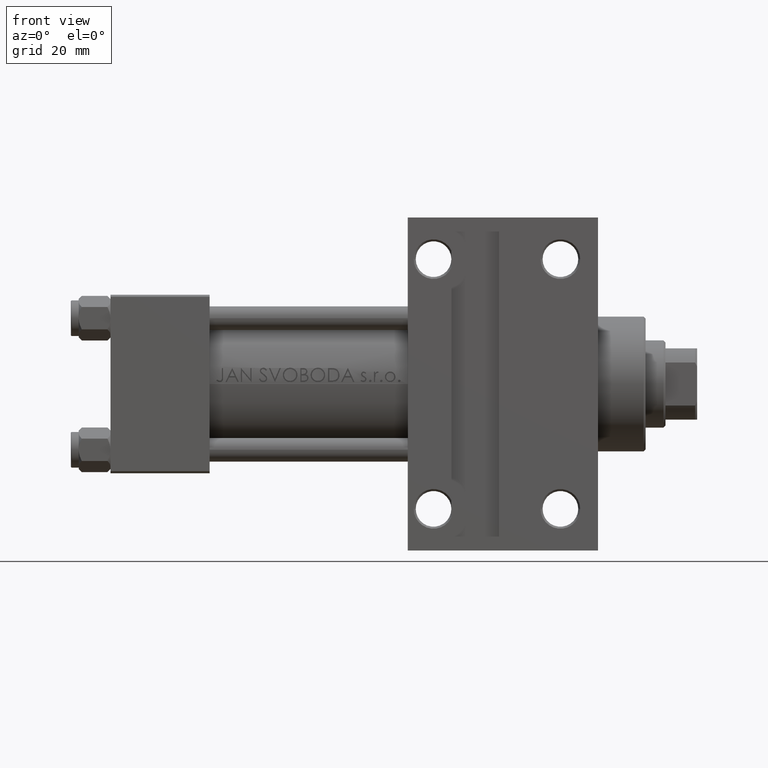
[diagram: clean part render]
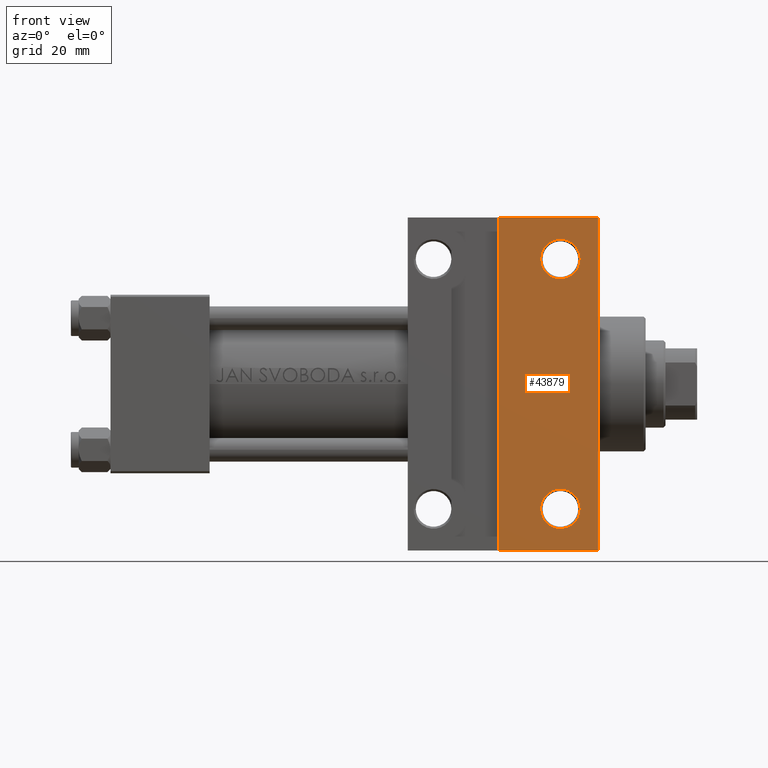
[diagram: same view with one face highlighted and labeled with its STEP entity id]
A machine part, front view. The second image highlights one B-rep face of the part: STEP entity #43879.
In plain terms, the highlighted planar face has unit normal (0, -1, -0).
Its self-contained STEP definition (entity closure, byte-faithful):
#207 = ORIENTED_EDGE ( 'NONE', *, *, #29342, .T. ) ;
#428 = ORIENTED_EDGE ( 'NONE', *, *, #23253, .F. ) ;
#873 = VECTOR ( 'NONE', #32777, 1000.000000000000000 ) ;
#1114 = CARTESIAN_POINT ( 'NONE',  ( 113.5000000000000142, 31.50000000000000000, -22.49999999999999645 ) ) ;
#1358 = DIRECTION ( 'NONE',  ( 0.000000000000000000, 1.000000000000000000, 0.000000000000000000 ) ) ;
#1909 = ORIENTED_EDGE ( 'NONE', *, *, #3621, .T. ) ;
#2161 = CARTESIAN_POINT ( 'NONE',  ( 118.4994999999999692, -31.50000000000000000, -22.50000000000000000 ) ) ;
#3485 = ORIENTED_EDGE ( 'NONE', *, *, #4098, .T. ) ;
#3621 = EDGE_CURVE ( 'NONE', #43614, #8466, #43162, .T. ) ;
#4098 = EDGE_CURVE ( 'NONE', #34430, #25370, #47517, .T. ) ;
#4523 = AXIS2_PLACEMENT_3D ( 'NONE', #37100, #10803, #40468 ) ;
#4905 = CIRCLE ( 'NONE', #27222, 4.999499999999948763 ) ;
#5588 = DIRECTION ( 'NONE',  ( -1.000000000000000000, -0.000000000000000000, -0.000000000000000000 ) ) ;
#7475 = CARTESIAN_POINT ( 'NONE',  ( 123.0000000000000142, 22.50000000000000355, -22.49999999999999645 ) ) ;
#8198 = CARTESIAN_POINT ( 'NONE',  ( 118.4994999999999834, 31.50000000000000000, -22.49999999999999645 ) ) ;
#8466 = VERTEX_POINT ( 'NONE', #40314 ) ;
#8575 = EDGE_LOOP ( 'NONE', ( #27289, #3485 ) ) ;
#9009 = VECTOR ( 'NONE', #16391, 1000.000000000000000 ) ;
#9430 = CARTESIAN_POINT ( 'NONE',  ( 108.5005000000000734, -31.50000000000000000, -22.50000000000000000 ) ) ;
#10046 = ORIENTED_EDGE ( 'NONE', *, *, #32508, .T. ) ;
#10803 = DIRECTION ( 'NONE',  ( -0.000000000000000000, -7.709882115452476934E-17, 1.000000000000000000 ) ) ;
#11814 = CARTESIAN_POINT ( 'NONE',  ( 98.00000000000000000, -42.00000000000001421, -22.50000000000000000 ) ) ;
#11929 = VERTEX_POINT ( 'NONE', #37681 ) ;
#14032 = EDGE_CURVE ( 'NONE', #8466, #47546, #25778, .T. ) ;
#14538 = CARTESIAN_POINT ( 'NONE',  ( 98.00000000000000000, 42.00000000000000711, -22.50000000000000000 ) ) ;
#14584 = VECTOR ( 'NONE', #5588, 1000.000000000000000 ) ;
#14964 = PLANE ( 'NONE',  #20988 ) ;
#15419 = EDGE_CURVE ( 'NONE', #15840, #25777, #4905, .T. ) ;
#15840 = VERTEX_POINT ( 'NONE', #2161 ) ;
#16391 = DIRECTION ( 'NONE',  ( 1.000000000000000000, -2.891205793294679312E-16, 0.000000000000000000 ) ) ;
#16422 = CARTESIAN_POINT ( 'NONE',  ( 75.00000000000000000, -42.00000000000000711, -22.50000000000000000 ) ) ;
#18103 = FACE_BOUND ( 'NONE', #31396, .T. ) ;
#19334 = LINE ( 'NONE', #16422, #14584 ) ;
#20988 = AXIS2_PLACEMENT_3D ( 'NONE', #7475, #33536, #32806 ) ;
#21091 = CIRCLE ( 'NONE', #38058, 4.999499999999962085 ) ;
#22205 = ORIENTED_EDGE ( 'NONE', *, *, #15419, .T. ) ;
#23144 = LINE ( 'NONE', #11814, #39843 ) ;
#23253 = EDGE_CURVE ( 'NONE', #43614, #11929, #23144, .T. ) ;
#24802 = CARTESIAN_POINT ( 'NONE',  ( 75.00000000000001421, 42.00000000000000711, -22.50000000000000000 ) ) ;
#25370 = VERTEX_POINT ( 'NONE', #32131 ) ;
#25543 = CARTESIAN_POINT ( 'NONE',  ( 123.0000000000000142, 22.50000000000000355, -22.49999999999999645 ) ) ;
#25777 = VERTEX_POINT ( 'NONE', #9430 ) ;
#25778 = LINE ( 'NONE', #25543, #873 ) ;
#26694 = AXIS2_PLACEMENT_3D ( 'NONE', #1114, #34379, #1358 ) ;
#26854 = ORIENTED_EDGE ( 'NONE', *, *, #14032, .T. ) ;
#27222 = AXIS2_PLACEMENT_3D ( 'NONE', #39819, #28468, #43208 ) ;
#27289 = ORIENTED_EDGE ( 'NONE', *, *, #46579, .T. ) ;
#28468 = DIRECTION ( 'NONE',  ( -0.000000000000000000, -7.709882115452476934E-17, 1.000000000000000000 ) ) ;
#28711 = FACE_OUTER_BOUND ( 'NONE', #39432, .T. ) ;
#29342 = EDGE_CURVE ( 'NONE', #25777, #15840, #43810, .T. ) ;
#31396 = EDGE_LOOP ( 'NONE', ( #207, #22205 ) ) ;
#32131 = CARTESIAN_POINT ( 'NONE',  ( 108.5005000000000592, 31.50000000000000000, -22.49999999999999645 ) ) ;
#32499 = CARTESIAN_POINT ( 'NONE',  ( 113.5000000000000142, 31.50000000000000000, -22.49999999999999645 ) ) ;
#32508 = EDGE_CURVE ( 'NONE', #47546, #11929, #19334, .T. ) ;
#32777 = DIRECTION ( 'NONE',  ( 0.000000000000000000, -1.000000000000000000, -7.709882115452476934E-17 ) ) ;
#32806 = DIRECTION ( 'NONE',  ( 0.000000000000000000, 1.000000000000000000, 7.709882115452476934E-17 ) ) ;
#33536 = DIRECTION ( 'NONE',  ( 0.000000000000000000, 7.709882115452476934E-17, -1.000000000000000000 ) ) ;
#34254 = DIRECTION ( 'NONE',  ( -0.000000000000000000, -1.000000000000000000, -0.000000000000000000 ) ) ;
#34333 = CARTESIAN_POINT ( 'NONE',  ( 122.9999999999999858, -42.00000000000000711, -22.50000000000000000 ) ) ;
#34379 = DIRECTION ( 'NONE',  ( -0.000000000000000000, -7.709882115452476934E-17, 1.000000000000000000 ) ) ;
#34430 = VERTEX_POINT ( 'NONE', #8198 ) ;
#37100 = CARTESIAN_POINT ( 'NONE',  ( 113.5000000000000142, -31.50000000000000000, -22.50000000000000000 ) ) ;
#37681 = CARTESIAN_POINT ( 'NONE',  ( 98.00000000000000000, -42.00000000000001421, -22.50000000000000000 ) ) ;
#38058 = AXIS2_PLACEMENT_3D ( 'NONE', #32499, #40958, #47248 ) ;
#39432 = EDGE_LOOP ( 'NONE', ( #428, #1909, #26854, #10046 ) ) ;
#39819 = CARTESIAN_POINT ( 'NONE',  ( 113.5000000000000142, -31.50000000000000000, -22.50000000000000000 ) ) ;
#39843 = VECTOR ( 'NONE', #34254, 1000.000000000000000 ) ;
#40314 = CARTESIAN_POINT ( 'NONE',  ( 123.0000000000000000, 41.99999999999999289, -22.50000000000000000 ) ) ;
#40468 = DIRECTION ( 'NONE',  ( 0.000000000000000000, 1.000000000000000000, 0.000000000000000000 ) ) ;
#40958 = DIRECTION ( 'NONE',  ( -0.000000000000000000, -7.709882115452476934E-17, 1.000000000000000000 ) ) ;
#43162 = LINE ( 'NONE', #24802, #9009 ) ;
#43208 = DIRECTION ( 'NONE',  ( 0.000000000000000000, 1.000000000000000000, 0.000000000000000000 ) ) ;
#43614 = VERTEX_POINT ( 'NONE', #14538 ) ;
#43810 = CIRCLE ( 'NONE', #4523, 4.999499999999948763 ) ;
#43879 = ADVANCED_FACE ( 'NONE', ( #28711, #43933, #18103 ), #14964, .T. ) ;
#43933 = FACE_BOUND ( 'NONE', #8575, .T. ) ;
#46579 = EDGE_CURVE ( 'NONE', #25370, #34430, #21091, .T. ) ;
#47248 = DIRECTION ( 'NONE',  ( 0.000000000000000000, 1.000000000000000000, 0.000000000000000000 ) ) ;
#47517 = CIRCLE ( 'NONE', #26694, 4.999499999999962085 ) ;
#47546 = VERTEX_POINT ( 'NONE', #34333 ) ;